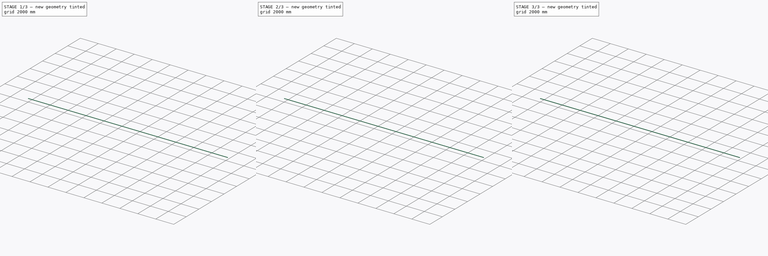
[diagram: build sequence overview — one tinted view per stage of 3, left to right]
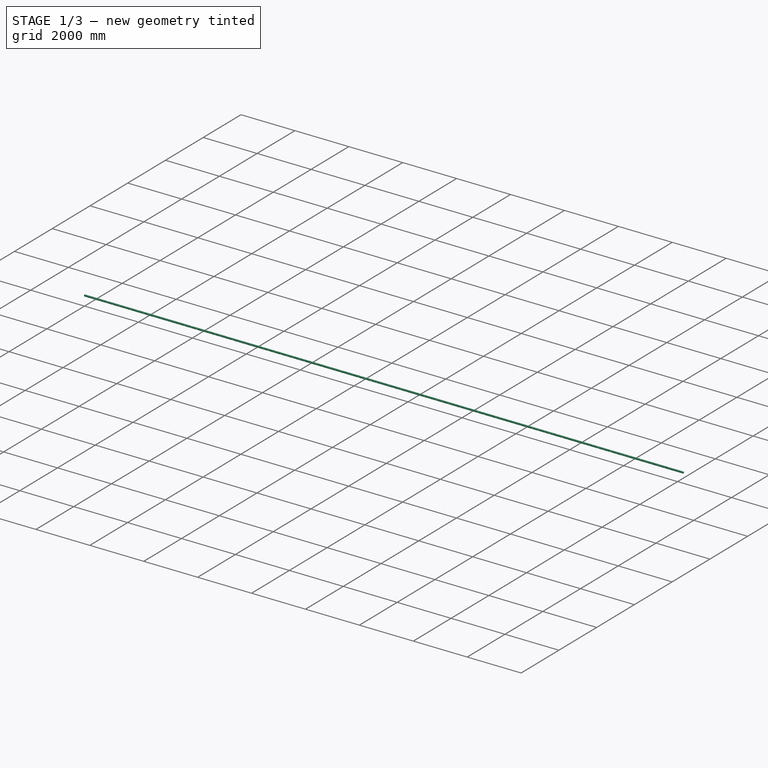
[diagram: stage 1 of 3 — iso view after this stage's code; geometry added in this stage tinted green]
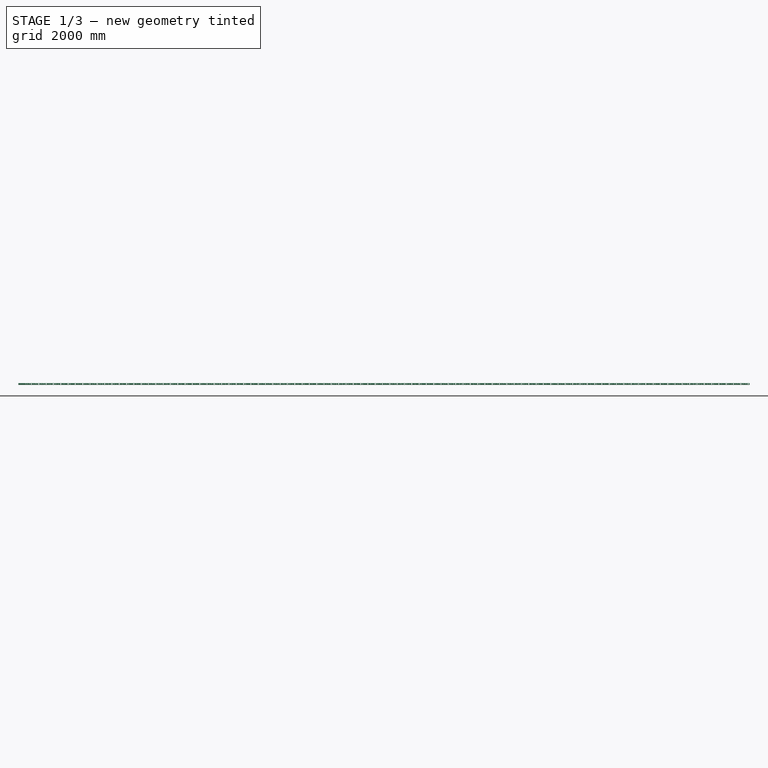
[diagram: stage 1 of 3 — front view after this stage's code; geometry added in this stage tinted green]
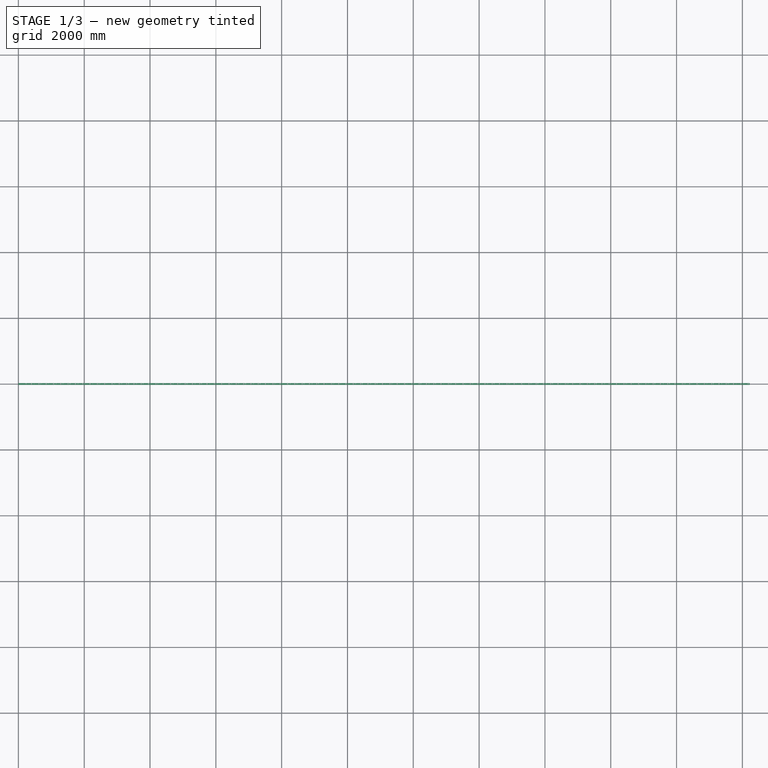
[diagram: stage 1 of 3 — top view after this stage's code; geometry added in this stage tinted green]
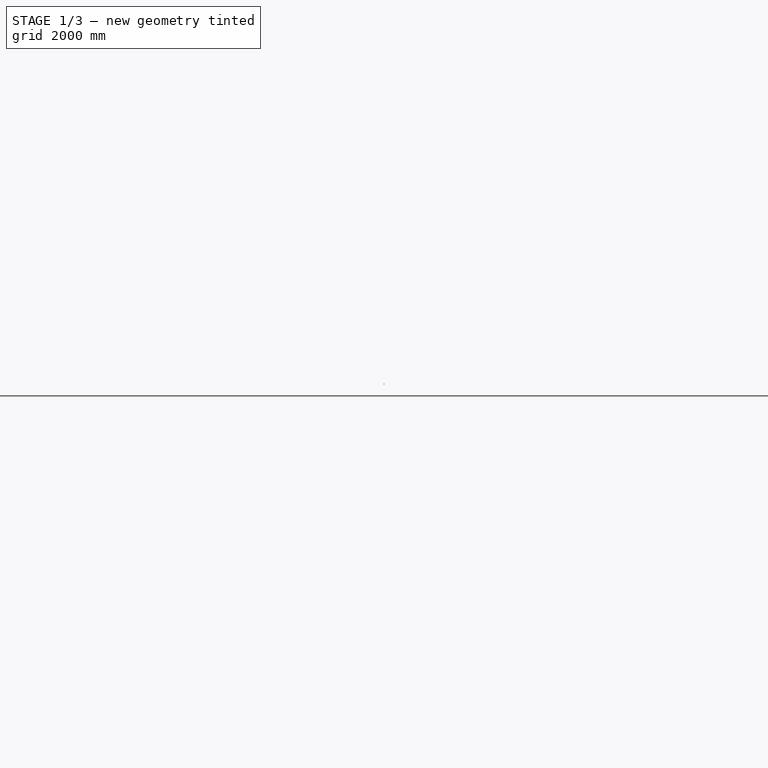
[diagram: stage 1 of 3 — right view after this stage's code; geometry added in this stage tinted green]
FCSTD DOCUMENT  (FreeCAD 0.20R26075 +2 (Git))
Label: Test7
License: All rights reserved
LicenseURL: http://en.wikipedia.org/wiki/All_rights_reserved
objects: Part::FeaturePython×4, Sketcher::SketchObject×3, Path::FeaturePython×3, App::DocumentObjectGroup×2, PartDesign::Pocket×2, PartDesign::Pad×1, App::FeaturePython×1, Path::FeatureCompoundPython×1, PartDesign::Body×1, Part::Feature×1, Part::Part2DObjectPython×1, App::Link×1
note: 15 computed .brp shape members not serialized (recipe doc carries the construction recipe); baked Part::Feature solids carry a one-line shape summary decoded from their .brp

FEATURE [Sketcher::SketchObject] Sketch
  FullyConstrained = true
  MapMode = 5
  Placement = pos=(0,0,0) rot=(0.57735,0.57735,0.57735;2.0944rad)
  Support = -> [YZ_Plane]
  sketch-geometry (20):
    g0: ArcOfCircle CenterX=-22.5 CenterY=22.5 CenterZ=0 NormalX=0 NormalY=0 NormalZ=1 AngleXU=0 Radius=0.5 StartAngle=1.5708 EndAngle=3.14159
    g1: LineSegment StartX=-22.5 StartY=23 StartZ=0 EndX=22.5 EndY=23 EndZ=0
    g2: ArcOfCircle CenterX=22.5 CenterY=22.5 CenterZ=0 NormalX=0 NormalY=0 NormalZ=1 AngleXU=0 Radius=0.5 StartAngle=2.1e-15 EndAngle=1.5708
    g3: LineSegment StartX=23 StartY=22.5 StartZ=0 EndX=23 EndY=-22.5 EndZ=0
    g4: ArcOfCircle CenterX=22.5 CenterY=-22.5 CenterZ=0 NormalX=0 NormalY=0 NormalZ=1 AngleXU=0 Radius=0.5 StartAngle=4.71239 EndAngle=6.28319
    g5: LineSegment StartX=22.5 StartY=-23 StartZ=0 EndX=-22.5 EndY=-23 EndZ=0
    g6: ArcOfCircle CenterX=-22.5 CenterY=-22.5 CenterZ=0 NormalX=0 NormalY=0 NormalZ=1 AngleXU=0 Radius=0.5 StartAngle=3.14159 EndAngle=4.71239
    g7: LineSegment StartX=-23 StartY=-22.5 StartZ=0 EndX=-23 EndY=22.5 EndZ=0
    g8: GeomPoint X=-23 Y=23 Z=0
    g9: GeomPoint X=23 Y=-23 Z=0
    g10: ArcOfCircle CenterX=-22.5 CenterY=22.5 CenterZ=0 NormalX=0 NormalY=0 NormalZ=1 AngleXU=0 Radius=2.5 StartAngle=1.5708 EndAngle=3.14159
    g11: LineSegment StartX=-22.5 StartY=25 StartZ=0 EndX=22.5 EndY=25 EndZ=0
    g12: ArcOfCircle CenterX=22.5 CenterY=22.5 CenterZ=0 NormalX=0 NormalY=0 NormalZ=1 AngleXU=0 Radius=2.5 StartAngle=8e-16 EndAngle=1.5708
    g13: LineSegment StartX=25 StartY=22.5 StartZ=0 EndX=25 EndY=-22.5 EndZ=0
    g14: ArcOfCircle CenterX=22.5 CenterY=-22.5 CenterZ=0 NormalX=0 NormalY=0 NormalZ=1 AngleXU=0 Radius=2.5 StartAngle=4.71239 EndAngle=6.28319
    g15: LineSegment StartX=22.5 StartY=-25 StartZ=0 EndX=-22.5 EndY=-25 EndZ=0
    g16: ArcOfCircle CenterX=-22.5 CenterY=-22.5 CenterZ=0 NormalX=0 NormalY=0 NormalZ=1 AngleXU=0 Radius=2.5 StartAngle=3.14159 EndAngle=4.71239
    g17: LineSegment StartX=-25 StartY=-22.5 StartZ=0 EndX=-25 EndY=22.5 EndZ=0
    g18: GeomPoint X=-25 Y=25 Z=0
    g19: GeomPoint X=25 Y=-25 Z=0
  constraints (45):
    c: Tangent(g0,g1) = 1.5708
    c: Tangent(g1,g2) = 1.5708
    c: Tangent(g2,g3) = 1.5708
    c: Tangent(g3,g4) = 1.5708
    c: Tangent(g4,g5) = 1.5708
    c: Tangent(g5,g6) = 1.5708
    c: Tangent(g6,g7) = 1.5708
    c: Tangent(g7,g0) = 1.5708
    c: Horizontal(g1)
    c: Horizontal(g5)
    c: Vertical(g3)
    c: Vertical(g7)
    c: Equal(g0,g2)
    c: Equal(g2,g4)
    c: Equal(g4,g6)
    c: PointOnObject(g8,g1)
    c: PointOnObject(g8,g7)
    c: PointOnObject(g9,g3)
    c: PointOnObject(g9,g5)
    c: Tangent(g10,g11) = 1.5708
    c: Tangent(g11,g12) = 1.5708
    c: Tangent(g12,g13) = 1.5708
    c: Tangent(g13,g14) = 1.5708
    c: Tangent(g14,g15) = 1.5708
    c: Tangent(g15,g16) = 1.5708
    c: Tangent(g16,g17) = 1.5708
    c: Tangent(g17,g10) = 1.5708
    c: Horizontal(g11)
    c: Horizontal(g15)
    c: Vertical(g13)
    c: Vertical(g17)
    c: Equal(g10,g12)
    c: Equal(g12,g14)
    c: Equal(g14,g16)
    c: PointOnObject(g18,g11)
    c: PointOnObject(g18,g17)
    c: PointOnObject(g19,g13)
    c: PointOnObject(g19,g15)
    c: DistanceX(g10,g12) = 50
    c: Equal(g17,g11)
    c: Radius(g10) = 2.5
    c: Symmetric(g10,g14,g-1)
    c: Symmetric(g6,g2,g-1)
    c: DistanceX(g10,g0) = 2
    c: Coincident(g6,g16)
FEATURE [PartDesign::Pad] Pad
  Direction = (1,-2e-16,3e-16)
  Length = 220
  Length2 = 100
  Placement = pos=(0,0,0) rot=(0.57735,0.57735,0.57735;2.0944rad)
  Profile = -> Sketch
  ReferenceAxis = -> Sketch [N_Axis]
  Type = 0
FEATURE [Part::Feature] Pocket001001
  Placement = pos=(0,0,0) rot=(0.57735,0.57735,0.57735;2.0944rad)
  shape: bbox 220 x 50 x 50 mm, 180 faces (baked)
FEATURE [Part::Part2DObjectPython] Line  # Draft 2D object (typed FeaturePython)
  Area = 0
  ChamferSize = 0
  Closed = false
  End = (22000,-0.000350405,-4.36689e-05)
  FilletRadius = 0
  Length = 22000
  MakeFace = true
  Placement = pos=(0,0,0) rot=(1,0,0;1.21712rad)
  Points = (2) [(0,0,0),(22000,-0.000162328,0.000313593)]
  Start = (0,0,0)
  Subdivisions = 0
FEATURE [Part::FeaturePython] PathArray  # WARN: FeaturePython — macro-defined, semantics opaque (R4)
  Align = false
  AlignMode = 0
  Base = -> Pocket001001
  Count = 100
  ExpandArray = false
  ExtraTranslation = (0,0,0)
  ForceVertical = false
  PathObject = -> Line
  PlacementList = 100 placements: [(0,0,0),(22000,-0.000350405,-4.36689e-05),(222.222,-3.53945e-06,-4.411e-07),(444.444,-7.0789e-06,-8.822e-07),(666.667,-1.06183e-05,-1.3233e-06),(888.889,-1.41578e-05,-1.7644e-06),(1111.11,-1.76972e-05,-2.2055e-06),(1333.33,-2.12367e-05,-2.6466e-06),(1555.56,-2.47761e-05,-3.0877e-06),(1777.78,-2.83156e-05,-3.5288e-06),(2000,-3.1855e-05,-3.9699e-06),(2222.22,-3.53945e-05,-4.411e-06),+88 more]
  ScaleList = (100) [(1,1,1),(1,1,1),(1,1,1),(1,1,1),(1,1,1),(1,1,1),(1,1,1),(1,1,1),(1,1,1),(1,1,1),(1,1,1),(1,1,1),(1,1,1),(1,1,1),(1,1,1),(1,1,1),(1,1,1),(1,1,1),+82 more]
  TangentVector = (1,0,0)
  VerticalVector = (0,0,1)
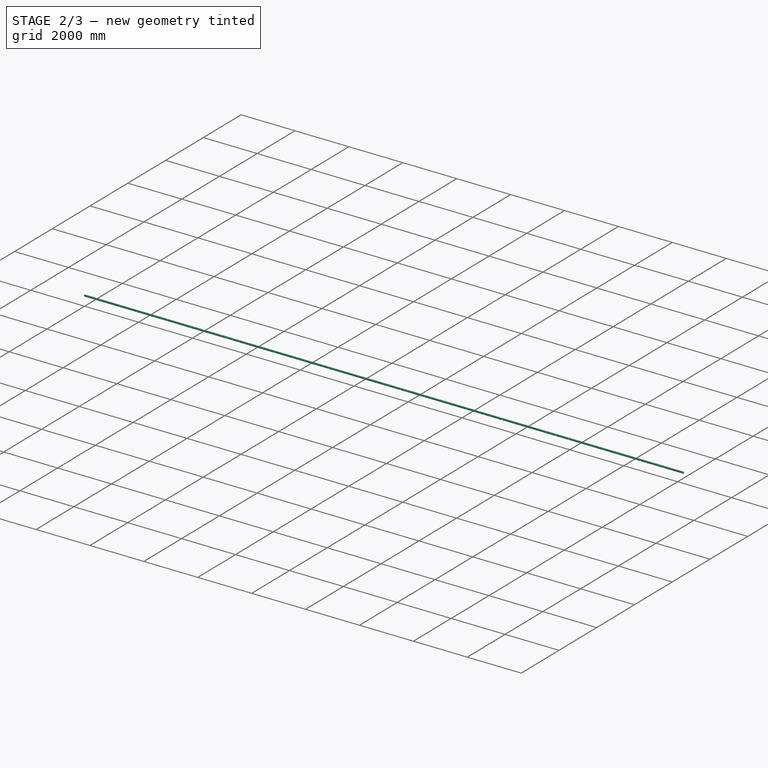
[diagram: stage 2 of 3 — iso view after this stage's code; geometry added in this stage tinted green]
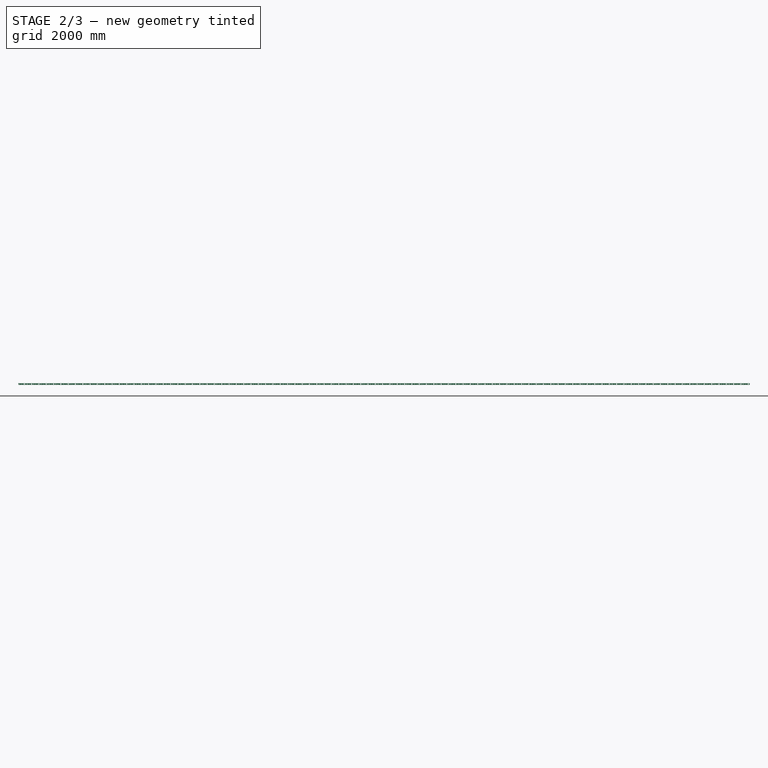
[diagram: stage 2 of 3 — front view after this stage's code; geometry added in this stage tinted green]
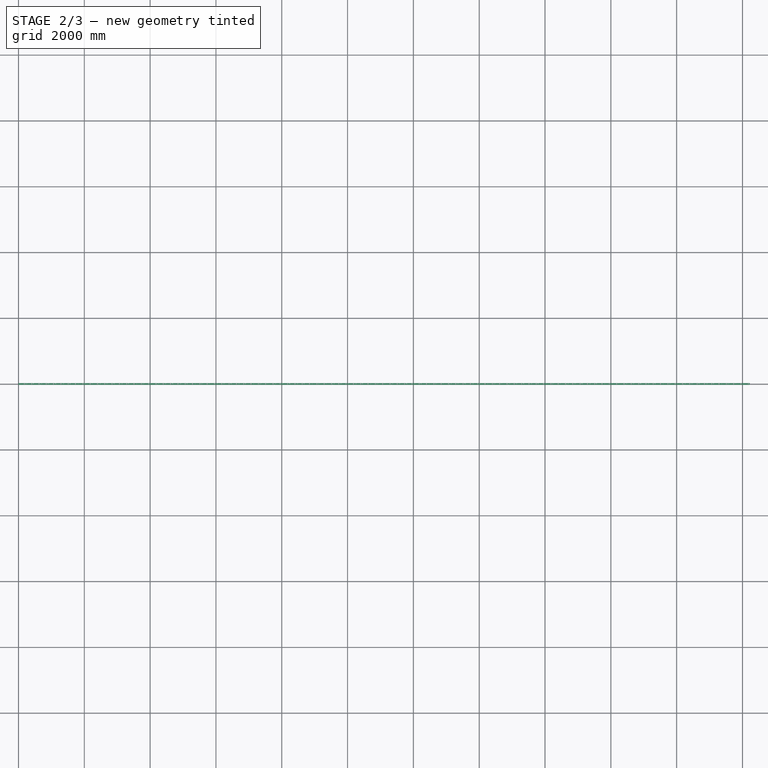
[diagram: stage 2 of 3 — top view after this stage's code; geometry added in this stage tinted green]
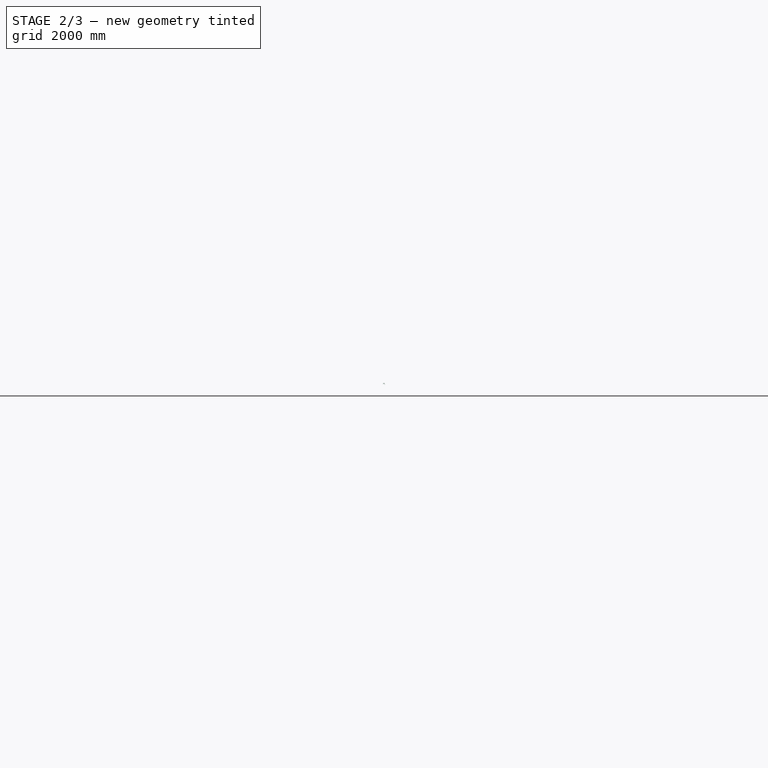
[diagram: stage 2 of 3 — right view after this stage's code; geometry added in this stage tinted green]
FEATURE [App::FeaturePython] SetupSheet  # Path/CAM operation (typed FeaturePython)
  ClearanceHeightExpression = OpStockZMax+SetupSheet.ClearanceHeightOffset
  ClearanceHeightOffset = 5
  CoolantMode = 0
  CoolantModes = None | Flood | Mist
  FinalDepthExpression = OpFinalDepth
  HorizRapid = 60000
  SafeHeightExpression = OpStockZMax+SetupSheet.SafeHeightOffset
  SafeHeightOffset = 3
  StartDepthExpression = OpStartDepth
  StepDownExpression = OpToolDiameter
  VertRapid = 60000
FEATURE [Part::FeaturePython] ToolBit001  label="laser"  # Path/CAM toolbit (typed FeaturePython)
  BitPropertyNames = Chipload | CuttingEdgeHeight | Diameter | Flutes | Length | Material | ShankDiameter
  BitShape = <userpath>/Documents/GitHub/FreeCADBuild/Mod/Path/Tools\Shape\laser.fcstd
  Chipload = 0
  CuttingEdgeHeight = 10
  Diameter = 0.1
  File = <userpath>/Documents/GitHub/FreeCADBuild/Mod/Path/Tools/Bit/laser.fctb
  Flutes = 0
  Length = 30
  Material = 0
  ShankDiameter = 15
  ShapeName = laser
FEATURE [Path::FeaturePython] laser  label="laser001"  # Path/CAM operation (typed FeaturePython)
  HorizFeed = 10000
  HorizRapid = 60000
  SpindleDir = 0
  SpindleSpeed = 0
  Tool = -> ToolBit001
  ToolNumber = 2
  VertFeed = 10000
  VertRapid = 60000
  expr: VertRapid = SetupSheet.VertRapid
  expr: HorizRapid = SetupSheet.HorizRapid
FEATURE [App::DocumentObjectGroup] Tools
  Group = -> [laser]
FEATURE [Path::FeaturePython] Custom  # Path/CAM operation (typed FeaturePython)
  Active = true
  CoolantMode = None
  CycleTime = 00:00:00
  Gcode = <blob: 12355 chars omitted>
  OpStockZMax = 25
  OpStockZMin = -25
  OpToolDiameter = 0.1
  StartDepth = 25
  ToolController = -> laser
FEATURE [Path::FeatureCompoundPython] Operations  # Path/CAM operation (typed FeaturePython)
  Group = -> [Custom]
  UsePlacements = false
FEATURE [Sketcher::SketchObject] Sketch001
  FullyConstrained = false
  Placement = pos=(0,0,0) rot=(1,0,0;1.5708rad)
  sketch-geometry (36):
    g0: LineSegment StartX=26 StartY=5 StartZ=0 EndX=26 EndY=-5 EndZ=0
    g1: LineSegment StartX=26 StartY=-5 StartZ=0 EndX=16 EndY=-5 EndZ=0
    g2: LineSegment StartX=16 StartY=-5 StartZ=0 EndX=16 EndY=5 EndZ=0
    g3: LineSegment StartX=16 StartY=5 StartZ=0 EndX=26 EndY=5 EndZ=0
    g4: LineSegment StartX=36 StartY=5 StartZ=0 EndX=46 EndY=5 EndZ=0
    g5: LineSegment StartX=46 StartY=5 StartZ=0 EndX=46 EndY=-5 EndZ=0
    g6: LineSegment StartX=46 StartY=-5 StartZ=0 EndX=36 EndY=-5 EndZ=0
    g7: LineSegment StartX=36 StartY=-5 StartZ=0 EndX=36 EndY=5 EndZ=0
    g8: Circle CenterX=60.9981 CenterY=15 CenterZ=0 NormalX=0 NormalY=0 NormalZ=1 AngleXU=0 Radius=3
    g9: Circle CenterX=60.9981 CenterY=-2e-16 CenterZ=0 NormalX=0 NormalY=0 NormalZ=1 AngleXU=0 Radius=3
    g10: Circle CenterX=60.9981 CenterY=-15 CenterZ=0 NormalX=0 NormalY=0 NormalZ=1 AngleXU=0 Radius=3
    g11: Circle CenterX=81.0019 CenterY=-15 CenterZ=0 NormalX=0 NormalY=0 NormalZ=1 AngleXU=0 Radius=3
    g12: Circle CenterX=81.0019 CenterY=-4e-16 CenterZ=0 NormalX=0 NormalY=0 NormalZ=1 AngleXU=0 Radius=3
    g13: Circle CenterX=81.0019 CenterY=15 CenterZ=0 NormalX=0 NormalY=0 NormalZ=1 AngleXU=0 Radius=3
    g14: Circle CenterX=100.998 CenterY=15 CenterZ=0 NormalX=0 NormalY=0 NormalZ=1 AngleXU=0 Radius=3
    g15: Circle CenterX=100.998 CenterY=4e-16 CenterZ=0 NormalX=0 NormalY=0 NormalZ=1 AngleXU=0 Radius=3
    g16: Circle CenterX=100.998 CenterY=-15 CenterZ=0 NormalX=0 NormalY=0 NormalZ=1 AngleXU=0 Radius=3
    g17: Circle CenterX=121.002 CenterY=-15 CenterZ=0 NormalX=0 NormalY=0 NormalZ=1 AngleXU=0 Radius=3
    g18: Circle CenterX=121.002 CenterY=-4e-16 CenterZ=0 NormalX=0 NormalY=0 NormalZ=1 AngleXU=0 Radius=3
    g19: Circle CenterX=121.002 CenterY=15 CenterZ=0 NormalX=0 NormalY=0 NormalZ=1 AngleXU=0 Radius=3
    g20: Circle CenterX=140.998 CenterY=15 CenterZ=0 NormalX=0 NormalY=0 NormalZ=1 AngleXU=0 Radius=3
    g21: Circle CenterX=140.998 CenterY=4e-16 CenterZ=0 NormalX=0 NormalY=0 NormalZ=1 AngleXU=0 Radius=3
    g22: Circle CenterX=140.998 CenterY=-15 CenterZ=0 NormalX=0 NormalY=0 NormalZ=1 AngleXU=0 Radius=3
    g23: LineSegment StartX=182.72 StartY=-14.495 StartZ=0 EndX=186.61 EndY=-10.61 EndZ=0
    g24: LineSegment StartX=186.61 StartY=-10.61 StartZ=0 EndX=194.38 EndY=-2.83 EndZ=0
    g25: ArcOfCircle CenterX=191.576 CenterY=3.5e-14 CenterZ=0 NormalX=0 NormalY=0 NormalZ=1 AngleXU=0 Radius=3.9836 StartAngle=5.4931 EndAngle=7.07327
    g26: LineSegment StartX=194.38 StartY=2.83 StartZ=0 EndX=186.61 EndY=10.61 EndZ=0
    g27: LineSegment StartX=186.61 StartY=10.61 StartZ=0 EndX=178.83 EndY=18.38 EndZ=0
    g28: ArcOfCircle CenterX=176 CenterY=15.5764 CenterZ=0 NormalX=0 NormalY=0 NormalZ=1 AngleXU=0 Radius=3.9836 StartAngle=0.780712 EndAngle=2.36088
    g29: LineSegment StartX=173.17 StartY=18.38 StartZ=0 EndX=165.39 EndY=10.61 EndZ=0
    g30: LineSegment StartX=165.39 StartY=10.61 StartZ=0 EndX=157.61 EndY=2.83 EndZ=0
    g31: ArcOfCircle CenterX=160.436 CenterY=0.00498331 CenterZ=0 NormalX=0 NormalY=0 NormalZ=1 AngleXU=0 Radius=3.99556 StartAngle=2.35629 EndAngle=3.93043
    g32: LineSegment StartX=157.62 StartY=-2.83 StartZ=0 EndX=165.39 EndY=-10.61 EndZ=0
    g33: LineSegment StartX=165.39 StartY=-10.61 StartZ=0 EndX=173.17 EndY=-18.39 EndZ=0
    g34: ArcOfCircle CenterX=175.995 CenterY=-15.5644 CenterZ=0 NormalX=0 NormalY=0 NormalZ=1 AngleXU=0 Radius=3.99556 StartAngle=3.92709 EndAngle=5.50123
    g35: LineSegment StartX=178.83 StartY=-18.38 StartZ=0 EndX=182.72 EndY=-14.495 EndZ=0
FEATURE [Sketcher::SketchObject] Sketch002
  FullyConstrained = false
  sketch-geometry (45):
    g0: Circle CenterX=41 CenterY=15 CenterZ=0 NormalX=0 NormalY=0 NormalZ=1 AngleXU=0 Radius=4.99925
    g1: Circle CenterX=16 CenterY=15 CenterZ=0 NormalX=0 NormalY=0 NormalZ=1 AngleXU=0 Radius=5
    g2: Circle CenterX=16 CenterY=-15 CenterZ=0 NormalX=0 NormalY=0 NormalZ=1 AngleXU=0 Radius=5
    g3: Circle CenterX=41 CenterY=-15 CenterZ=0 NormalX=0 NormalY=0 NormalZ=1 AngleXU=0 Radius=4.99925
    g4: LineSegment StartX=63.12 StartY=-2.12 StartZ=0 EndX=64.54 EndY=-0.71 EndZ=0
    g5: ArcOfCircle CenterX=62.415 CenterY=1.415 CenterZ=0 NormalX=0 NormalY=0 NormalZ=1 AngleXU=0 Radius=3.0052 StartAngle=5.49779 EndAngle=8.63938
    g6: LineSegment StartX=60.29 StartY=3.54 StartZ=0 EndX=58.88 EndY=2.12 EndZ=0
    g7: LineSegment StartX=58.88 StartY=2.12 StartZ=0 EndX=57.46 EndY=0.71 EndZ=0
    g8: ArcOfCircle CenterX=59.585 CenterY=-1.415 CenterZ=0 NormalX=0 NormalY=0 NormalZ=1 AngleXU=0 Radius=3.0052 StartAngle=2.35619 EndAngle=5.49779
    g9: LineSegment StartX=61.71 StartY=-3.54 StartZ=0 EndX=63.12 EndY=-2.12 EndZ=0
    g10: LineSegment StartX=83.12 StartY=-2.12 StartZ=0 EndX=84.54 EndY=-0.71 EndZ=0
    g11: ArcOfCircle CenterX=82.415 CenterY=1.415 CenterZ=0 NormalX=0 NormalY=0 NormalZ=1 AngleXU=0 Radius=3.0052 StartAngle=5.49779 EndAngle=8.63938
    g12: LineSegment StartX=80.29 StartY=3.54 StartZ=0 EndX=78.88 EndY=2.12 EndZ=0
    g13: LineSegment StartX=78.88 StartY=2.12 StartZ=0 EndX=77.46 EndY=0.71 EndZ=0
    g14: ArcOfCircle CenterX=79.585 CenterY=-1.415 CenterZ=0 NormalX=0 NormalY=0 NormalZ=1 AngleXU=0 Radius=3.0052 StartAngle=2.35619 EndAngle=5.49779
    g15: LineSegment StartX=81.71 StartY=-3.54 StartZ=0 EndX=83.12 EndY=-2.12 EndZ=0
    g16: LineSegment StartX=103.12 StartY=-2.12 StartZ=0 EndX=104.54 EndY=-0.71 EndZ=0
    g17: ArcOfCircle CenterX=102.415 CenterY=1.415 CenterZ=0 NormalX=0 NormalY=0 NormalZ=1 AngleXU=0 Radius=3.0052 StartAngle=5.49779 EndAngle=8.63938
    g18: LineSegment StartX=100.29 StartY=3.54 StartZ=0 EndX=98.88 EndY=2.12 EndZ=0
    g19: LineSegment StartX=98.88 StartY=2.12 StartZ=0 EndX=97.46 EndY=0.71 EndZ=0
    g20: ArcOfCircle CenterX=99.585 CenterY=-1.415 CenterZ=0 NormalX=0 NormalY=0 NormalZ=1 AngleXU=0 Radius=3.0052 StartAngle=2.35619 EndAngle=5.49779
    g21: LineSegment StartX=101.71 StartY=-3.54 StartZ=0 EndX=103.12 EndY=-2.12 EndZ=0
    g22: LineSegment StartX=123.12 StartY=-2.12 StartZ=0 EndX=124.54 EndY=-0.71 EndZ=0
    g23: ArcOfCircle CenterX=122.415 CenterY=1.415 CenterZ=0 NormalX=0 NormalY=0 NormalZ=1 AngleXU=0 Radius=3.0052 StartAngle=5.49779 EndAngle=8.63938
    g24: LineSegment StartX=120.29 StartY=3.54 StartZ=0 EndX=118.88 EndY=2.12 EndZ=0
    g25: LineSegment StartX=118.88 StartY=2.12 StartZ=0 EndX=117.46 EndY=0.71 EndZ=0
    g26: ArcOfCircle CenterX=119.585 CenterY=-1.415 CenterZ=0 NormalX=0 NormalY=0 NormalZ=1 AngleXU=0 Radius=3.0052 StartAngle=2.35619 EndAngle=5.49779
    g27: LineSegment StartX=121.71 StartY=-3.54 StartZ=0 EndX=123.12 EndY=-2.12 EndZ=0
    g28: LineSegment StartX=143.12 StartY=-2.12 StartZ=0 EndX=144.54 EndY=-0.71 EndZ=0
    g29: ArcOfCircle CenterX=142.415 CenterY=1.415 CenterZ=0 NormalX=0 NormalY=0 NormalZ=1 AngleXU=0 Radius=3.0052 StartAngle=5.49779 EndAngle=8.63938
    g30: LineSegment StartX=140.29 StartY=3.54 StartZ=0 EndX=138.88 EndY=2.12 EndZ=0
    g31: LineSegment StartX=138.88 StartY=2.12 StartZ=0 EndX=137.46 EndY=0.71 EndZ=0
    g32: ArcOfCircle CenterX=139.585 CenterY=-1.415 CenterZ=0 NormalX=0 NormalY=0 NormalZ=1 AngleXU=0 Radius=3.0052 StartAngle=2.35619 EndAngle=5.49779
    g33: LineSegment StartX=141.71 StartY=-3.54 StartZ=0 EndX=143.12 EndY=-2.12 EndZ=0
    g34: LineSegment StartX=161 StartY=5.5 StartZ=0 EndX=161 EndY=11 EndZ=0
    g35: ArcOfCircle CenterX=164.995 CenterY=11.0054 CenterZ=0 NormalX=0 NormalY=0 NormalZ=1 AngleXU=-3.14159 Radius=3.99464 StartAngle=4.71105 EndAngle=6.28453
    g36: LineSegment StartX=165 StartY=15 StartZ=0 EndX=187 EndY=15 EndZ=0
    g37: ArcOfCircle CenterX=187.005 CenterY=11.0054 CenterZ=0 NormalX=0 NormalY=0 NormalZ=1 AngleXU=-3.14159 Radius=3.99464 StartAngle=3.14025 EndAngle=4.71373
    g38: LineSegment StartX=191 StartY=11 StartZ=0 EndX=191 EndY=-11 EndZ=0
    g39: ArcOfCircle CenterX=187.005 CenterY=-11.0054 CenterZ=0 NormalX=0 NormalY=0 NormalZ=1 AngleXU=-3.14159 Radius=3.99464 StartAngle=1.56945 EndAngle=3.14293
    g40: LineSegment StartX=187 StartY=-15 StartZ=0 EndX=176 EndY=-15 EndZ=0
    g41: LineSegment StartX=176 StartY=-15 StartZ=0 EndX=165 EndY=-15 EndZ=0
    g42: ArcOfCircle CenterX=164.995 CenterY=-11.0054 CenterZ=0 NormalX=0 NormalY=0 NormalZ=1 AngleXU=-3.14159 Radius=3.99464 StartAngle=6.28184 EndAngle=7.85532
    g43: LineSegment StartX=161 StartY=-11 StartZ=0 EndX=161 EndY=3.73e-14 EndZ=0
    g44: LineSegment StartX=161 StartY=3.7e-14 StartZ=0 EndX=161 EndY=5.5 EndZ=0
FEATURE [PartDesign::Pocket] Pocket
  BaseFeature = -> Pad
  Length = 5
  Length2 = 100
  Midplane = true
  Placement = pos=(0,0,0) rot=(0.57735,0.57735,0.57735;2.0944rad)
  Profile = -> Sketch001
  Type = 1
FEATURE [PartDesign::Pocket] Pocket001
  BaseFeature = -> Pocket
  Length = 5
  Length2 = 100
  Midplane = true
  Placement = pos=(0,0,0) rot=(0.57735,0.57735,0.57735;2.0944rad)
  Profile = -> Sketch002
  Type = 1
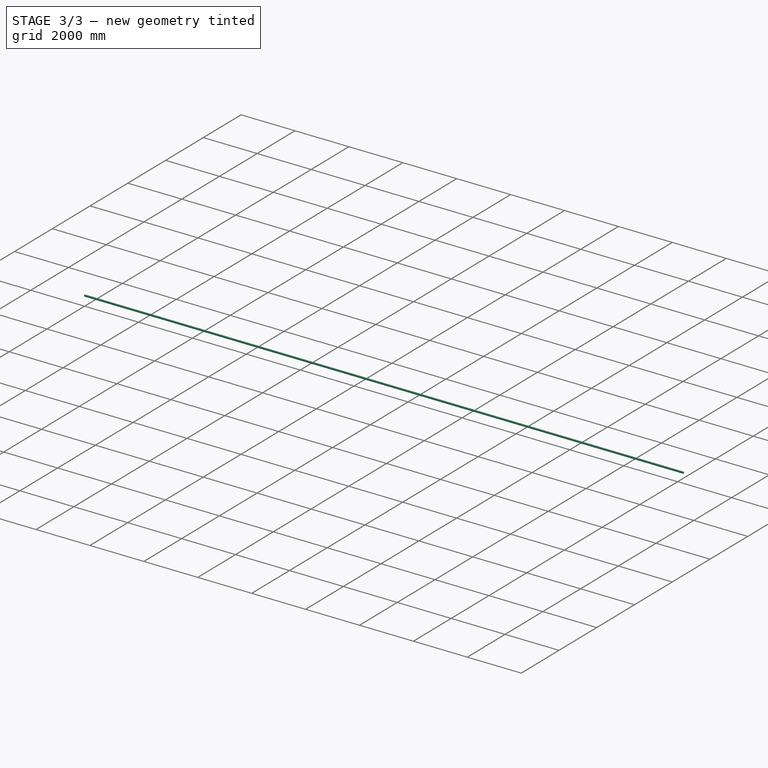
[diagram: stage 3 of 3 — iso view after this stage's code; geometry added in this stage tinted green]
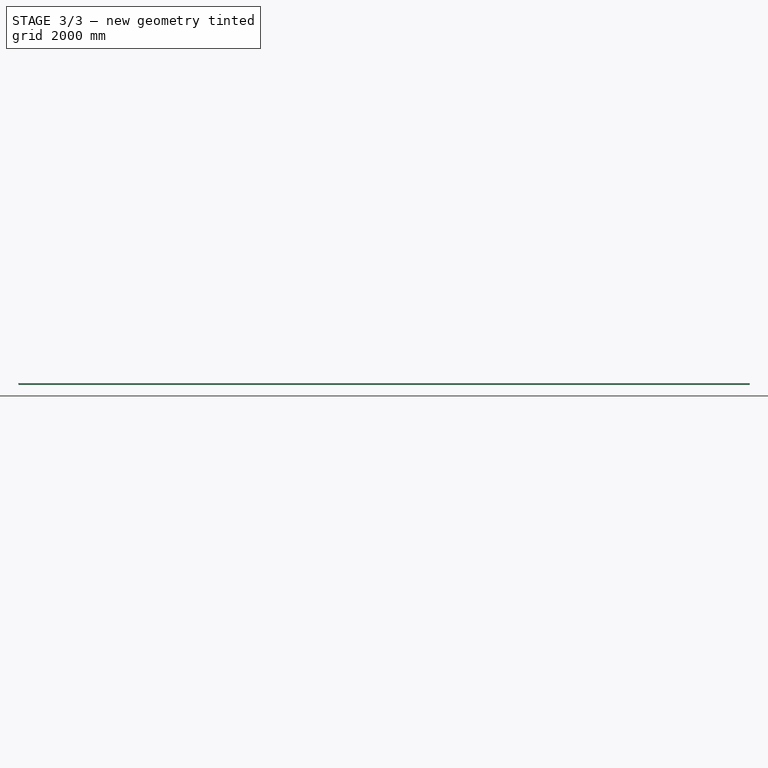
[diagram: stage 3 of 3 — front view after this stage's code; geometry added in this stage tinted green]
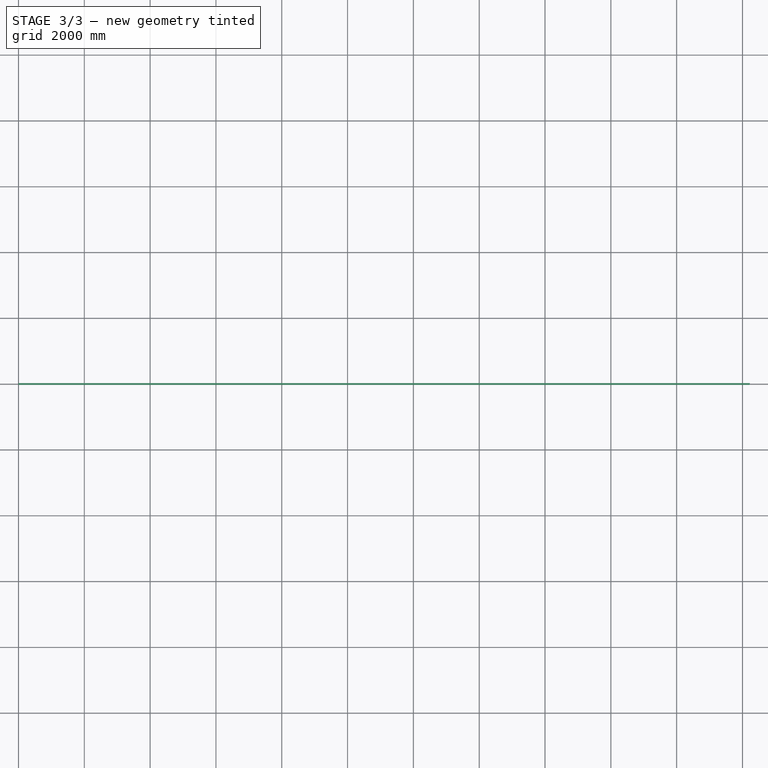
[diagram: stage 3 of 3 — top view after this stage's code; geometry added in this stage tinted green]
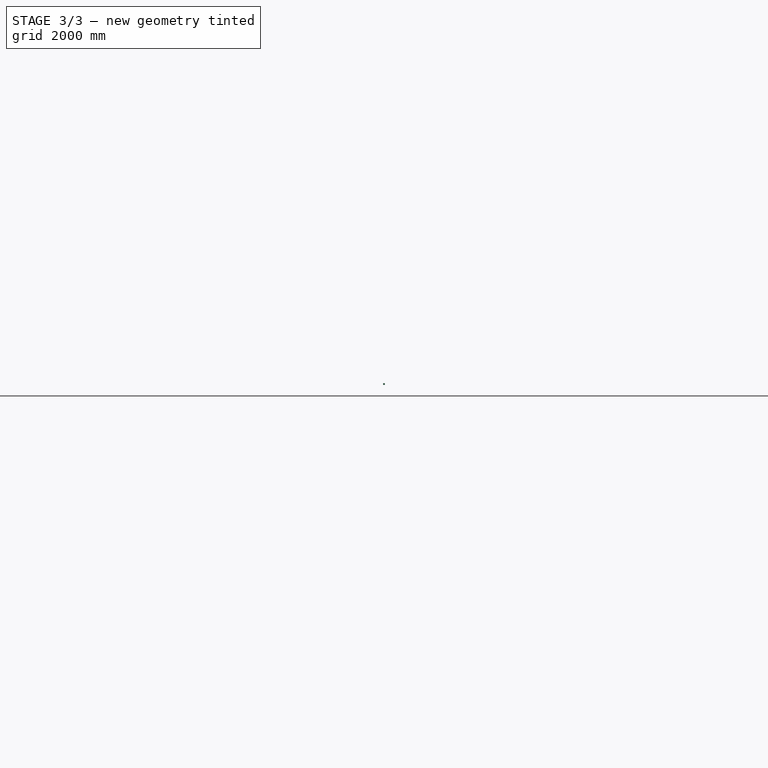
[diagram: stage 3 of 3 — right view after this stage's code; geometry added in this stage tinted green]
FEATURE [PartDesign::Body] Body
  Group = -> [Sketch,Pad,Sketch001,Sketch002,Pocket,Pocket001]
  Origin = -> Origin
  Tip = -> Pocket001
FEATURE [Part::FeaturePython] Clone  label="Model-Body"  # Draft clone (typed FeaturePython)
  AttacherType = Attacher::AttachEngine3D
  Fuse = false
  Objects = -> [Body]
  PathResource = Model
  Scale = (1,1,1)
FEATURE [App::Link] Link  label="PathArray001"
  LinkedObject = -> PathArray
FEATURE [App::DocumentObjectGroup] Model
  Group = -> [Clone,Link]
FEATURE [Part::FeaturePython] Stock  # WARN: FeaturePython — macro-defined, semantics opaque (R4)
  Base = -> Model
  ExtXneg = 0
  ExtXpos = 0
  ExtYneg = 0
  ExtYpos = 0
  ExtZneg = 0
  ExtZpos = 0
  Placement = pos=(-1.9e-14,-25,-25) rot=(0,0,1;0rad)
  StockType = FromBase
FEATURE [Path::FeaturePython] Job  # Path/CAM operation (typed FeaturePython)
  CycleTime = 00:00:00
  Fixtures = G54
  GeometryTolerance = 0.01
  Model = -> Model
  Operations = -> Operations
  OrderOutputBy = 0
  PostProcessor = 7
  SetupSheet = -> SetupSheet
  SplitOutput = false
  Stock = -> Stock
  Tools = -> Tools
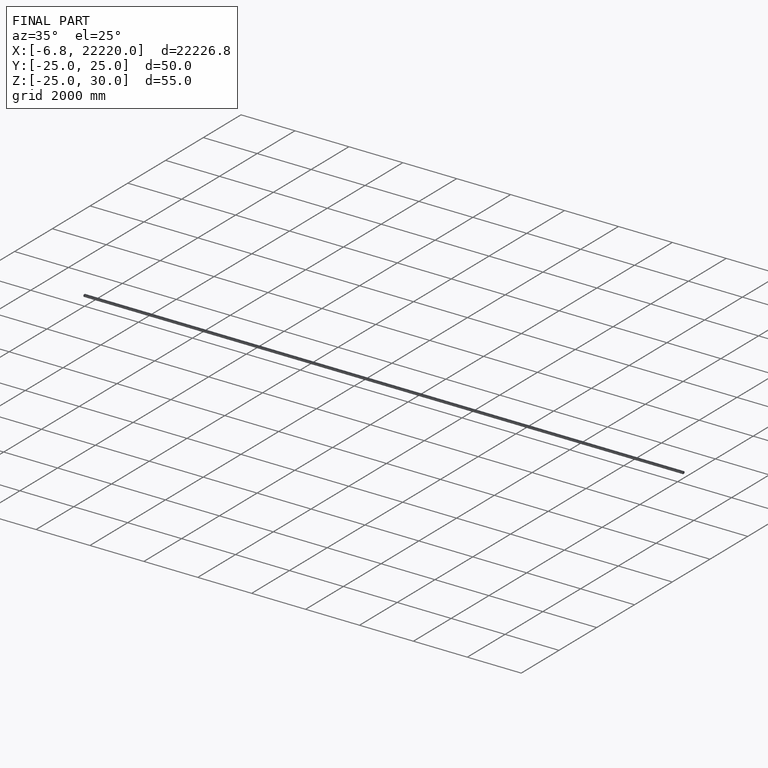
[diagram: finished part — iso view with bounding-box wireframe]
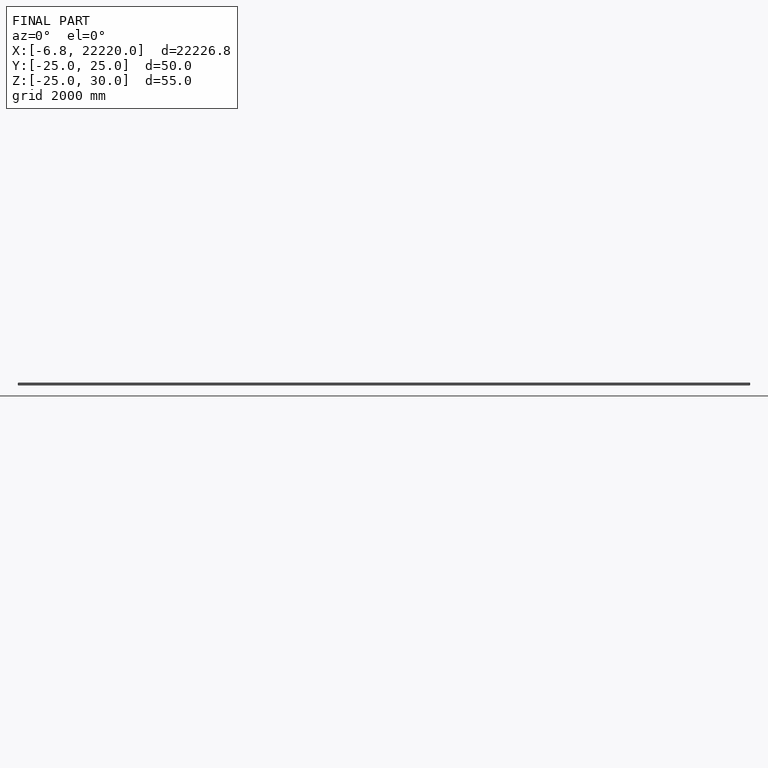
[diagram: finished part — front view with bounding-box wireframe]
